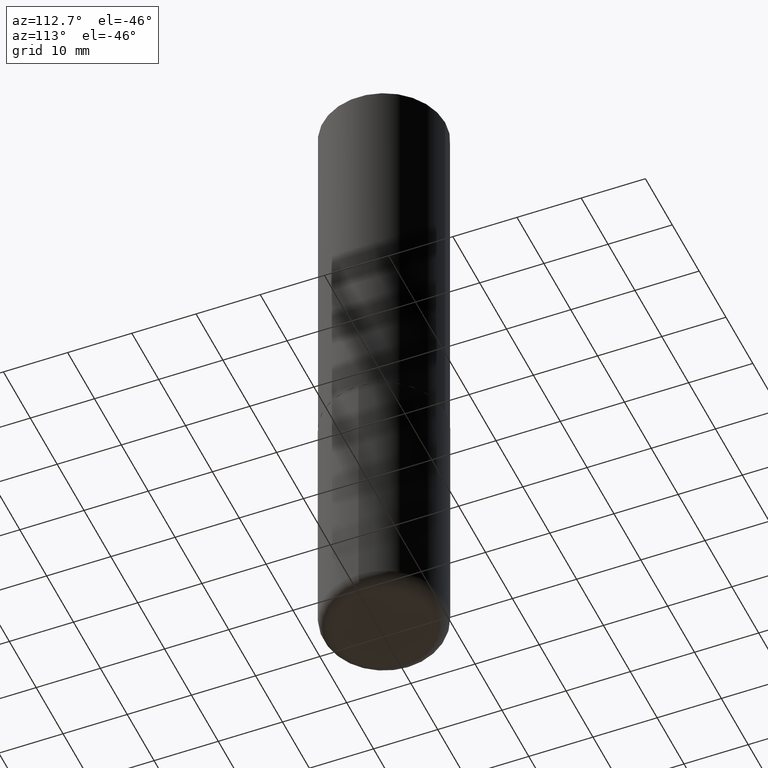
[diagram: clean part render]
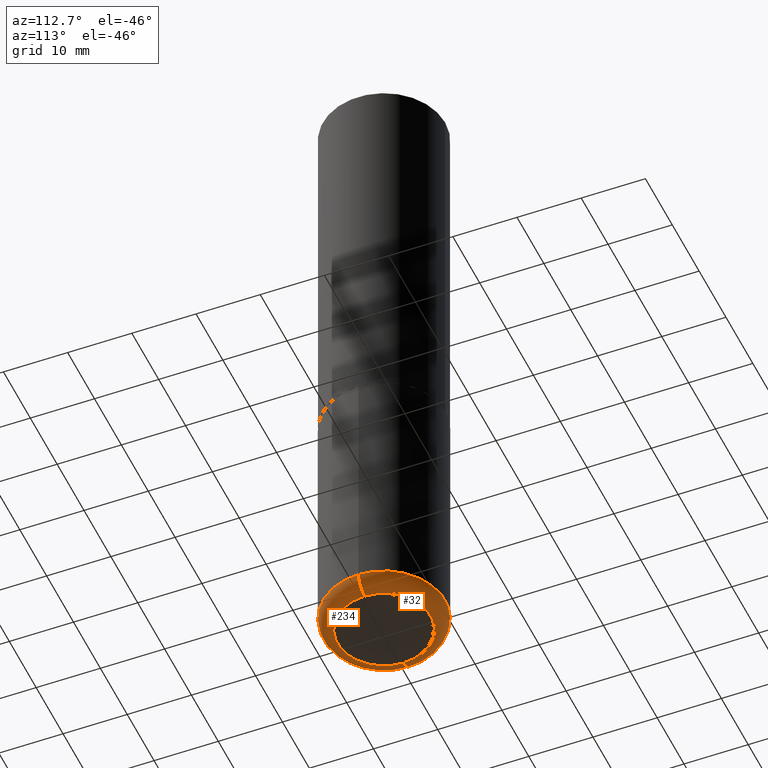
[diagram: same view with one multi-face feature highlighted, each face labeled with its STEP entity id]
A machine part, auxiliary view. The highlighted faces form ONE feature: a constant-radius fillet chain: 2 tangent blend faces with common blend radius 2.286 mm. The faces share edges in the B-rep.
Their STEP definitions:
[1] entity #234 (Torus):
#12 = CARTESIAN_POINT ( 'NONE',  ( -0.3749999999999999445, -1.098715677577632652E-14, -3.910000000000000142 ) ) ;
#15 = DIRECTION ( 'NONE',  ( 1.000000000000000000, -6.982962677686263555E-15, 4.883557194083111219E-29 ) ) ;
#16 = CIRCLE ( 'NONE', #31, 0.08999999999999992728 ) ;
#31 = AXIS2_PLACEMENT_3D ( 'NONE', #200, #333, #41 ) ;
#41 = DIRECTION ( 'NONE',  ( 1.000000000000000000, -6.982962677686273810E-15, 0.000000000000000000 ) ) ;
#49 = TOROIDAL_SURFACE ( 'NONE', #65, 0.2850000000000000311, 0.08999999999999989952 ) ;
#65 = AXIS2_PLACEMENT_3D ( 'NONE', #305, #404, #15 ) ;
#73 = CARTESIAN_POINT ( 'NONE',  ( -0.2850000000000000311, -1.162664523796041410E-14, -3.910000000000000142 ) ) ;
#81 = CARTESIAN_POINT ( 'NONE',  ( -0.2850000000000000311, -1.146401766711631116E-14, -4.000000000000000000 ) ) ;
#101 = AXIS2_PLACEMENT_3D ( 'NONE', #243, #376, #335 ) ;
#111 = CARTESIAN_POINT ( 'NONE',  ( 9.781875224740546387E-29, -1.396592535537258233E-14, -4.000000000000000000 ) ) ;
#127 = VERTEX_POINT ( 'NONE', #299 ) ;
#146 = FACE_OUTER_BOUND ( 'NONE', #179, .T. ) ;
#157 = ORIENTED_EDGE ( 'NONE', *, *, #315, .F. ) ;
#160 = AXIS2_PLACEMENT_3D ( 'NONE', #111, #237, #370 ) ;
#164 = DIRECTION ( 'NONE',  ( -1.000000000000000000, 7.105427357600996337E-15, 0.000000000000000000 ) ) ;
#167 = EDGE_CURVE ( 'NONE', #413, #346, #218, .T. ) ;
#179 = EDGE_LOOP ( 'NONE', ( #293, #255, #354, #157 ) ) ;
#184 = CIRCLE ( 'NONE', #160, 0.2850000000000000311 ) ;
#200 = CARTESIAN_POINT ( 'NONE',  ( 0.2850000000000000311, -1.564183639801728729E-14, -3.910000000000000142 ) ) ;
#206 = VERTEX_POINT ( 'NONE', #295 ) ;
#218 = CIRCLE ( 'NONE', #238, 0.08999999999999992728 ) ;
#226 = DIRECTION ( 'NONE',  ( 7.105427357601001859E-15, 1.000000000000000000, -3.491481338843145583E-15 ) ) ;
#234 = ADVANCED_FACE ( 'NONE', ( #146 ), #49, .T. ) ;
#237 = DIRECTION ( 'NONE',  ( -2.445468806185136597E-29, 3.491481338843145583E-15, 1.000000000000000000 ) ) ;
#238 = AXIS2_PLACEMENT_3D ( 'NONE', #73, #226, #164 ) ;
#243 = CARTESIAN_POINT ( 'NONE',  ( 9.561783032183883600E-29, -1.365169203487670064E-14, -3.910000000000000142 ) ) ;
#255 = ORIENTED_EDGE ( 'NONE', *, *, #380, .T. ) ;
#267 = CIRCLE ( 'NONE', #101, 0.3749999999999999445 ) ;
#293 = ORIENTED_EDGE ( 'NONE', *, *, #167, .F. ) ;
#295 = CARTESIAN_POINT ( 'NONE',  ( 0.2850000000000000311, -1.595606971851316740E-14, -4.000000000000000000 ) ) ;
#299 = CARTESIAN_POINT ( 'NONE',  ( 0.3749999999999999445, -1.627030303900904751E-14, -3.910000000000000142 ) ) ;
#305 = CARTESIAN_POINT ( 'NONE',  ( 9.561783032183883600E-29, -1.365169203487670064E-14, -3.910000000000000142 ) ) ;
#315 = EDGE_CURVE ( 'NONE', #346, #127, #267, .T. ) ;
#321 = EDGE_CURVE ( 'NONE', #206, #127, #16, .T. ) ;
#333 = DIRECTION ( 'NONE',  ( -6.982962677686266711E-15, -1.000000000000000000, 3.491481338843145583E-15 ) ) ;
#335 = DIRECTION ( 'NONE',  ( 1.000000000000000000, -6.982962677686263555E-15, 0.000000000000000000 ) ) ;
#346 = VERTEX_POINT ( 'NONE', #12 ) ;
#354 = ORIENTED_EDGE ( 'NONE', *, *, #321, .T. ) ;
#370 = DIRECTION ( 'NONE',  ( 1.000000000000000000, -6.982962677686266711E-15, 0.000000000000000000 ) ) ;
#376 = DIRECTION ( 'NONE',  ( -2.445468806185136597E-29, 3.491481338843145583E-15, 1.000000000000000000 ) ) ;
#380 = EDGE_CURVE ( 'NONE', #413, #206, #184, .T. ) ;
#404 = DIRECTION ( 'NONE',  ( -2.445468806185136597E-29, 3.491481338843145583E-15, 1.000000000000000000 ) ) ;
#413 = VERTEX_POINT ( 'NONE', #81 ) ;
[2] entity #32 (Torus):
#12 = CARTESIAN_POINT ( 'NONE',  ( -0.3749999999999999445, -1.098715677577632652E-14, -3.910000000000000142 ) ) ;
#16 = CIRCLE ( 'NONE', #31, 0.08999999999999992728 ) ;
#27 = FACE_OUTER_BOUND ( 'NONE', #48, .T. ) ;
#31 = AXIS2_PLACEMENT_3D ( 'NONE', #200, #333, #41 ) ;
#32 = ADVANCED_FACE ( 'NONE', ( #27 ), #181, .T. ) ;
#41 = DIRECTION ( 'NONE',  ( 1.000000000000000000, -6.982962677686273810E-15, 0.000000000000000000 ) ) ;
#48 = EDGE_LOOP ( 'NONE', ( #183, #143, #337, #242 ) ) ;
#73 = CARTESIAN_POINT ( 'NONE',  ( -0.2850000000000000311, -1.162664523796041410E-14, -3.910000000000000142 ) ) ;
#81 = CARTESIAN_POINT ( 'NONE',  ( -0.2850000000000000311, -1.146401766711631116E-14, -4.000000000000000000 ) ) ;
#96 = CIRCLE ( 'NONE', #232, 0.2850000000000000311 ) ;
#127 = VERTEX_POINT ( 'NONE', #299 ) ;
#143 = ORIENTED_EDGE ( 'NONE', *, *, #167, .T. ) ;
#149 = CARTESIAN_POINT ( 'NONE',  ( 9.561783032183883600E-29, -1.365169203487670064E-14, -3.910000000000000142 ) ) ;
#164 = DIRECTION ( 'NONE',  ( -1.000000000000000000, 7.105427357600996337E-15, 0.000000000000000000 ) ) ;
#167 = EDGE_CURVE ( 'NONE', #413, #346, #218, .T. ) ;
#169 = CARTESIAN_POINT ( 'NONE',  ( 9.561783032183883600E-29, -1.365169203487670064E-14, -3.910000000000000142 ) ) ;
#181 = TOROIDAL_SURFACE ( 'NONE', #359, 0.2850000000000000311, 0.08999999999999989952 ) ;
#182 = DIRECTION ( 'NONE',  ( -2.445468806185136597E-29, 3.491481338843145583E-15, 1.000000000000000000 ) ) ;
#183 = ORIENTED_EDGE ( 'NONE', *, *, #236, .T. ) ;
#200 = CARTESIAN_POINT ( 'NONE',  ( 0.2850000000000000311, -1.564183639801728729E-14, -3.910000000000000142 ) ) ;
#203 = DIRECTION ( 'NONE',  ( -2.445468806185136597E-29, 3.491481338843145583E-15, 1.000000000000000000 ) ) ;
#206 = VERTEX_POINT ( 'NONE', #295 ) ;
#218 = CIRCLE ( 'NONE', #238, 0.08999999999999992728 ) ;
#226 = DIRECTION ( 'NONE',  ( 7.105427357601001859E-15, 1.000000000000000000, -3.491481338843145583E-15 ) ) ;
#232 = AXIS2_PLACEMENT_3D ( 'NONE', #278, #182, #310 ) ;
#236 = EDGE_CURVE ( 'NONE', #206, #413, #96, .T. ) ;
#238 = AXIS2_PLACEMENT_3D ( 'NONE', #73, #226, #164 ) ;
#242 = ORIENTED_EDGE ( 'NONE', *, *, #321, .F. ) ;
#258 = CIRCLE ( 'NONE', #292, 0.3749999999999999445 ) ;
#278 = CARTESIAN_POINT ( 'NONE',  ( 9.781875224740546387E-29, -1.396592535537258233E-14, -4.000000000000000000 ) ) ;
#280 = DIRECTION ( 'NONE',  ( 1.000000000000000000, -6.982962677686263555E-15, 0.000000000000000000 ) ) ;
#292 = AXIS2_PLACEMENT_3D ( 'NONE', #149, #203, #280 ) ;
#294 = EDGE_CURVE ( 'NONE', #127, #346, #258, .T. ) ;
#295 = CARTESIAN_POINT ( 'NONE',  ( 0.2850000000000000311, -1.595606971851316740E-14, -4.000000000000000000 ) ) ;
#299 = CARTESIAN_POINT ( 'NONE',  ( 0.3749999999999999445, -1.627030303900904751E-14, -3.910000000000000142 ) ) ;
#310 = DIRECTION ( 'NONE',  ( 1.000000000000000000, -6.982962677686266711E-15, 0.000000000000000000 ) ) ;
#321 = EDGE_CURVE ( 'NONE', #206, #127, #16, .T. ) ;
#333 = DIRECTION ( 'NONE',  ( -6.982962677686266711E-15, -1.000000000000000000, 3.491481338843145583E-15 ) ) ;
#337 = ORIENTED_EDGE ( 'NONE', *, *, #294, .F. ) ;
#346 = VERTEX_POINT ( 'NONE', #12 ) ;
#359 = AXIS2_PLACEMENT_3D ( 'NONE', #169, #366, #361 ) ;
#361 = DIRECTION ( 'NONE',  ( 1.000000000000000000, -6.982962677686263555E-15, 4.883557194083111219E-29 ) ) ;
#366 = DIRECTION ( 'NONE',  ( -2.445468806185136597E-29, 3.491481338843145583E-15, 1.000000000000000000 ) ) ;
#413 = VERTEX_POINT ( 'NONE', #81 ) ;